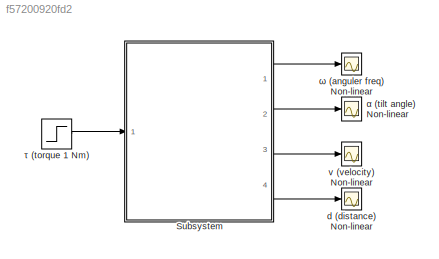
MODEL slx_f57200920fd2
KIND model
CONFIG AbsTol = auto
CONFIG EnableMultiTasking = off
CONFIG FixedStep = auto
CONFIG MaxStep = auto
CONFIG MinStep = auto
CONFIG RelTol = 1e-3
CONFIG SampleTimeConstraint = Unconstrained
CONFIG Solver = VariableStepAuto
CONFIG SolverName = VariableStepAuto
CONFIG StartTime = 0.0
CONFIG StopTime = 3
BLOCK [Scope]       ω (anguler freq) Non-linear
  Floating = off
  NumInputPorts = 1
  Ports = [1]
  ScopeSpecificationString = Simulink.scopes.TimeScopeBlockCfg('CurrentConfiguration', extmgr.ConfigurationSet(extmgr.Configuration('Core','General UI',true,'FigureColor',[1 1 1],'ShowMainToolbar',false,'ShowStatusbar',false),extmgr.Configuration('Core','Source UI',true),extmgr.Configuration('Sources','WiredSimulink',true,'DataLoggingVariableName','ScopeData2'),extmgr.Configuration('Visuals','Time Domain',true,'SerializedDisp...<+1618ch>
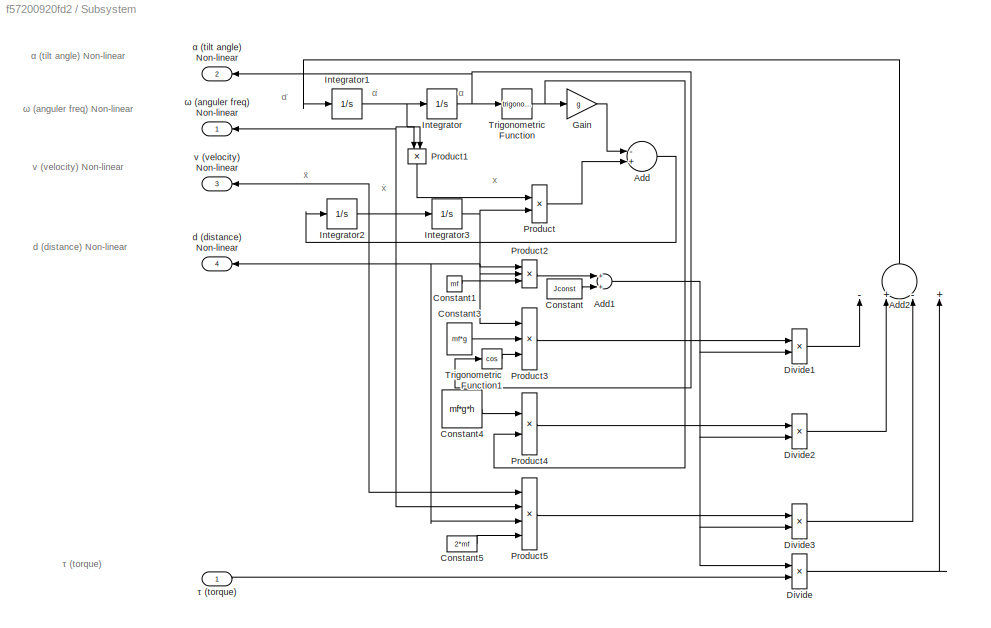
BLOCK [SubSystem] Subsystem
  Ports = [1, 4]
  RequestExecContextInheritance = off
BLOCK [Sum] Subsystem/Add
  InputSameDT = off
  Inputs = -+
  OutDataTypeStr = Inherit: Inherit via internal rule
  Ports = [2, 1]
  SaturateOnIntegerOverflow = off
BLOCK [Sum] Subsystem/Add1
  InputSameDT = off
  OutDataTypeStr = Inherit: Inherit via internal rule
  Ports = [2, 1]
  SaturateOnIntegerOverflow = off
BLOCK [Sum] Subsystem/Add2
  InputSameDT = off
  Inputs = -+-+
  OutDataTypeStr = Inherit: Inherit via internal rule
  Ports = [4, 1]
  SaturateOnIntegerOverflow = off
BLOCK [Constant] Subsystem/Constant
  Value = Jconst
BLOCK [Constant] Subsystem/Constant1
  Value = mf
BLOCK [Constant] Subsystem/Constant3
  Value = mf*g
BLOCK [Constant] Subsystem/Constant4
  Value = mf*g*h
BLOCK [Constant] Subsystem/Constant5
  Value = 2*mf
BLOCK [Product] Subsystem/Divide
  InputSameDT = off
  Inputs = /*
  OutDataTypeStr = Inherit: Inherit via internal rule
  Ports = [2, 1]
  RndMeth = Floor
  SaturateOnIntegerOverflow = off
BLOCK [Product] Subsystem/Divide1
  InputSameDT = off
  Inputs = */
  OutDataTypeStr = Inherit: Inherit via internal rule
  Ports = [2, 1]
  RndMeth = Floor
  SaturateOnIntegerOverflow = off
BLOCK [Product] Subsystem/Divide2
  InputSameDT = off
  Inputs = */
  OutDataTypeStr = Inherit: Inherit via internal rule
  Ports = [2, 1]
  RndMeth = Floor
  SaturateOnIntegerOverflow = off
BLOCK [Product] Subsystem/Divide3
  InputSameDT = off
  Inputs = */
  OutDataTypeStr = Inherit: Inherit via internal rule
  Ports = [2, 1]
  RndMeth = Floor
  SaturateOnIntegerOverflow = off
BLOCK [Gain] Subsystem/Gain
  Gain = g
  OutDataTypeStr = Inherit: Inherit via internal rule
  ParamDataTypeStr = Inherit: Inherit via internal rule
  SaturateOnIntegerOverflow = off
BLOCK [Integrator] Subsystem/Integrator
  Ports = [1, 1]
BLOCK [Integrator] Subsystem/Integrator1
  Ports = [1, 1]
BLOCK [Integrator] Subsystem/Integrator2
  Ports = [1, 1]
BLOCK [Integrator] Subsystem/Integrator3
  Ports = [1, 1]
BLOCK [Product] Subsystem/Product
  InputSameDT = off
  OutDataTypeStr = Inherit: Inherit via internal rule
  Ports = [2, 1]
  RndMeth = Floor
  SaturateOnIntegerOverflow = off
BLOCK [Product] Subsystem/Product1
  InputSameDT = off
  OutDataTypeStr = Inherit: Inherit via internal rule
  Ports = [2, 1]
  RndMeth = Floor
  SaturateOnIntegerOverflow = off
BLOCK [Product] Subsystem/Product2
  InputSameDT = off
  Inputs = 3
  OutDataTypeStr = Inherit: Inherit via internal rule
  Ports = [3, 1]
  RndMeth = Floor
  SaturateOnIntegerOverflow = off
BLOCK [Product] Subsystem/Product3
  InputSameDT = off
  Inputs = 3
  OutDataTypeStr = Inherit: Inherit via internal rule
  Ports = [3, 1]
  RndMeth = Floor
  SaturateOnIntegerOverflow = off
BLOCK [Product] Subsystem/Product4
  InputSameDT = off
  OutDataTypeStr = Inherit: Inherit via internal rule
  Ports = [2, 1]
  RndMeth = Floor
  SaturateOnIntegerOverflow = off
BLOCK [Product] Subsystem/Product5
  InputSameDT = off
  Inputs = 4
  OutDataTypeStr = Inherit: Inherit via internal rule
  Ports = [4, 1]
  RndMeth = Floor
  SaturateOnIntegerOverflow = off
BLOCK [Trigonometry] Subsystem/Trigonometric Function
  Ports = [1, 1]
BLOCK [Trigonometry] Subsystem/Trigonometric Function1
  Operator = cos
  Ports = [1, 1]
BLOCK [Outport] Subsystem/d (distance) Non-linear
  IconDisplay = Port number
  Port = 4
BLOCK [Outport] Subsystem/v (velocity) Non-linear
  IconDisplay = Port number
  Port = 3
BLOCK [Outport] Subsystem/α (tilt angle) Non-linear
  IconDisplay = Port number
  Port = 2
BLOCK [Inport] Subsystem/τ (torque)
  IconDisplay = Port number
BLOCK [Outport] Subsystem/ω (anguler freq) Non-linear
  IconDisplay = Port number
BLOCK [Scope] d (distance) Non-linear
  Floating = off
  NumInputPorts = 1
  Ports = [1]
  ScopeSpecificationString = Simulink.scopes.TimeScopeBlockCfg('CurrentConfiguration', extmgr.ConfigurationSet(extmgr.Configuration('Core','General UI',true,'FigureColor',[1 1 1],'ShowMainToolbar',false,'ShowStatusbar',false),extmgr.Configuration('Core','Source UI',true),extmgr.Configuration('Sources','WiredSimulink',true),extmgr.Configuration('Visuals','Time Domain',true,'SerializedDisplays',{struct('MinYLimReal','-35.05029'...<+1575ch>
BLOCK [Scope] v (velocity) Non-linear
  Floating = off
  NumInputPorts = 1
  Ports = [1]
  ScopeSpecificationString = Simulink.scopes.TimeScopeBlockCfg('CurrentConfiguration', extmgr.ConfigurationSet(extmgr.Configuration('Core','General UI',true,'FigureColor',[1 1 1],'ShowMainToolbar',false,'ShowStatusbar',false),extmgr.Configuration('Core','Source UI',true),extmgr.Configuration('Sources','WiredSimulink',true,'DataLoggingVariableName','ScopeData1'),extmgr.Configuration('Visuals','Time Domain',true,'SerializedDisp...<+1616ch>
BLOCK [Scope] α (tilt angle) Non-linear
  Floating = off
  NumInputPorts = 1
  Ports = [1]
  ScopeSpecificationString = Simulink.scopes.TimeScopeBlockCfg('CurrentConfiguration', extmgr.ConfigurationSet(extmgr.Configuration('Core','General UI',true,'FigureColor',[1 1 1],'ShowMainToolbar',false,'ShowStatusbar',false),extmgr.Configuration('Core','Source UI',true),extmgr.Configuration('Sources','WiredSimulink',true,'DataLoggingVariableName','ScopeData3'),extmgr.Configuration('Visuals','Time Domain',true,'SerializedDisp...<+1655ch>
BLOCK [Step] τ (torque 1 Nm)
  SampleTime = 0
  Time = 0
ANNOTATION Subsystem: α
ANNOTATION Subsystem: α̇
ANNOTATION Subsystem: α̈
ANNOTATION Subsystem: τ (t orque)
ANNOTATION Subsystem: α (tilt angle) Non-linear
ANNOTATION Subsystem: ω (anguler freq) Non-linear
ANNOTATION Subsystem: ẋ
ANNOTATION Subsystem: ẍ
ANNOTATION Subsystem: d (distance) Non-linear
ANNOTATION Subsystem: v (velocity) Non-linear
ANNOTATION Subsystem: x
NET Subsystem/Add1:1 -> Subsystem/Divide1:2, Subsystem/Divide2:2, Subsystem/Divide3:2, Subsystem/Divide:1
LINE Subsystem/Add2:1 -> Subsystem/Integrator1:1
LINE Subsystem/Add:1 -> Subsystem/Integrator2:1
LINE Subsystem/Constant1:1 -> Subsystem/Product2:3
LINE Subsystem/Constant3:1 -> Subsystem/Product3:2
LINE Subsystem/Constant4:1 -> Subsystem/Product4:1
LINE Subsystem/Constant5:1 -> Subsystem/Product5:4
LINE Subsystem/Constant:1 -> Subsystem/Add1:2
LINE Subsystem/Divide1:1 -> Subsystem/Add2:1
LINE Subsystem/Divide2:1 -> Subsystem/Add2:2
LINE Subsystem/Divide3:1 -> Subsystem/Add2:3
LINE Subsystem/Divide:1 -> Subsystem/Add2:4
LINE Subsystem/Gain:1 -> Subsystem/Add:1
NET Subsystem/Integrator1:1 -> Subsystem/Integrator:1, Subsystem/Product1:1, Subsystem/Product1:2, Subsystem/Product5:2, Subsystem/ω (anguler freq) Non-linear:1
NET Subsystem/Integrator2:1 -> Subsystem/Integrator3:1, Subsystem/Product5:1, Subsystem/v (velocity) Non-linear:1
NET Subsystem/Integrator3:1 -> Subsystem/Product2:1, Subsystem/Product2:2, Subsystem/Product3:1, Subsystem/Product5:3, Subsystem/Product:2, Subsystem/d (distance) Non-linear:1
NET Subsystem/Integrator:1 -> Subsystem/Trigonometric Function1:1, Subsystem/Trigonometric Function:1, Subsystem/α (tilt angle) Non-linear:1
LINE Subsystem/Product1:1 -> Subsystem/Product:1
LINE Subsystem/Product2:1 -> Subsystem/Add1:1
LINE Subsystem/Product3:1 -> Subsystem/Divide1:1
LINE Subsystem/Product4:1 -> Subsystem/Divide2:1
LINE Subsystem/Product5:1 -> Subsystem/Divide3:1
LINE Subsystem/Product:1 -> Subsystem/Add:2
LINE Subsystem/Trigonometric Function1:1 -> Subsystem/Product3:3
NET Subsystem/Trigonometric Function:1 -> Subsystem/Gain:1, Subsystem/Product4:2
LINE Subsystem/τ (torque):1 -> Subsystem/Divide:2
LINE Subsystem:1 ->       ω (anguler freq) Non-linear:1
LINE Subsystem:2 -> α (tilt angle) Non-linear:1
LINE Subsystem:3 -> v (velocity) Non-linear:1
LINE Subsystem:4 -> d (distance) Non-linear:1
LINE τ (torque 1 Nm):1 -> Subsystem:1
note: NET lines group one-source signal fan-out (src -> all destinations, sorted); 1:1 wires keep LINE
